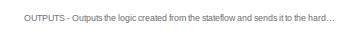
[diagram: root canvas - part 1/7, top right region]
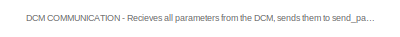
[diagram: root canvas - part 2/7, top left region]
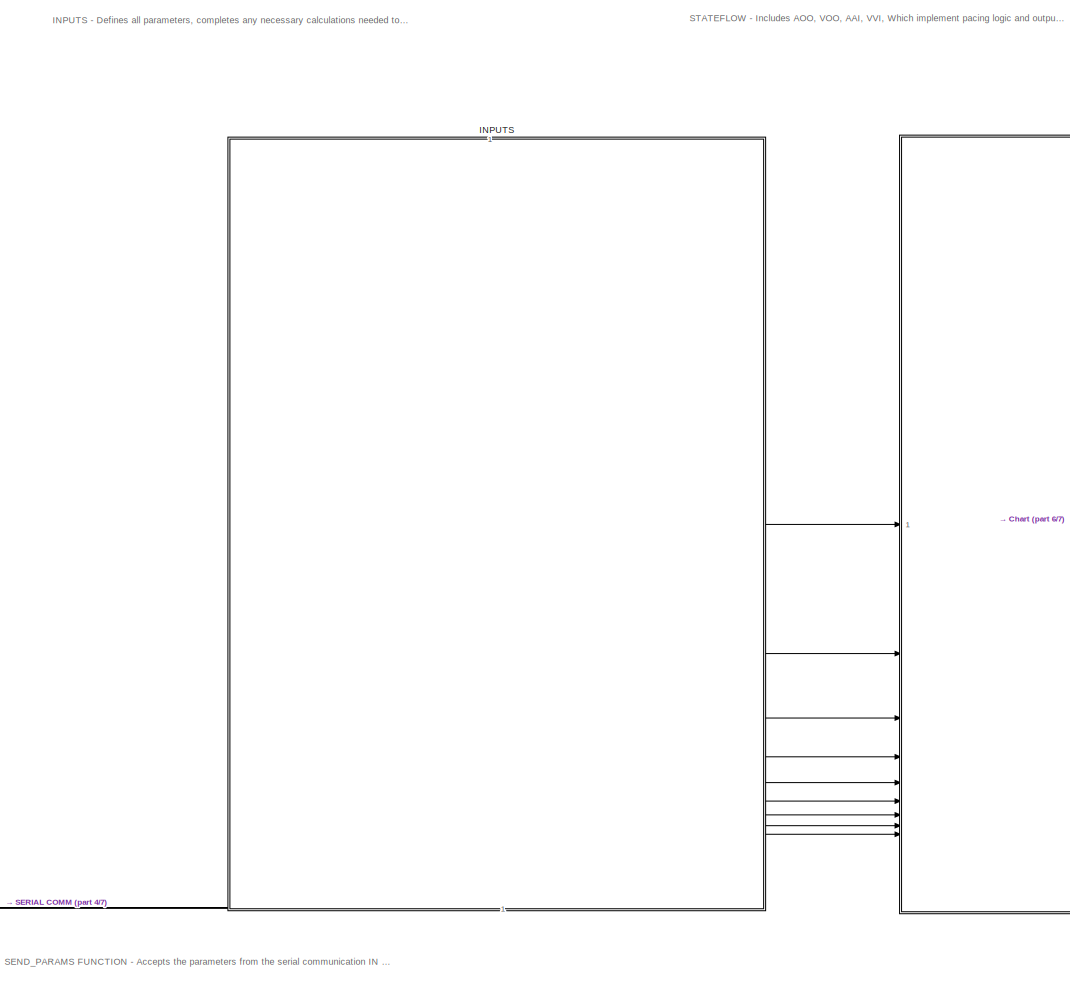
[diagram: root canvas - part 3/7, top center region]
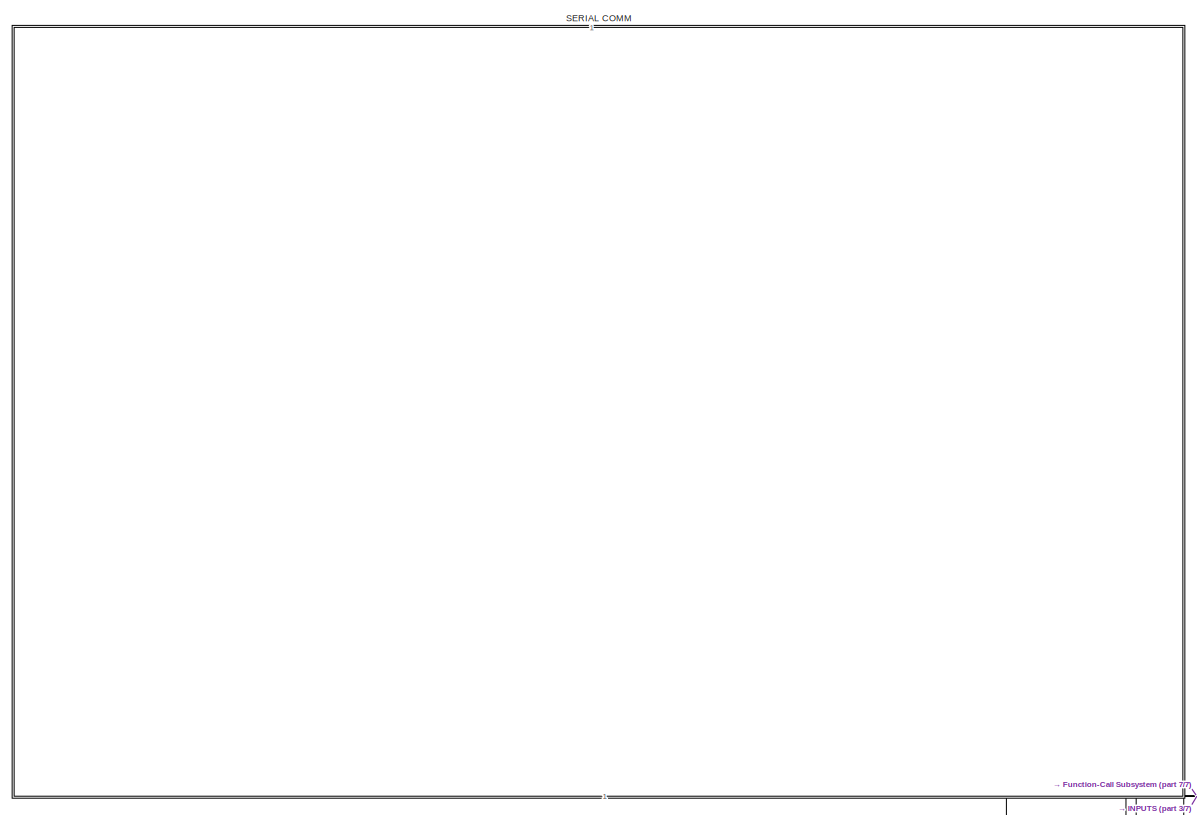
[diagram: root canvas - part 4/7, top left region]
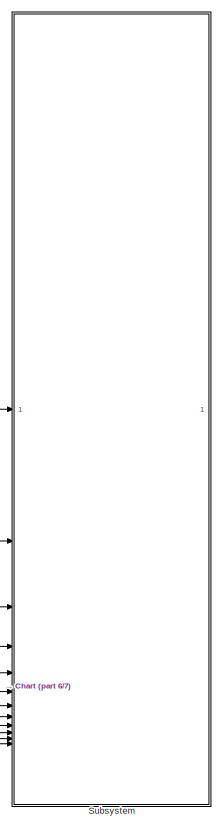
[diagram: root canvas - part 5/7, top right region]
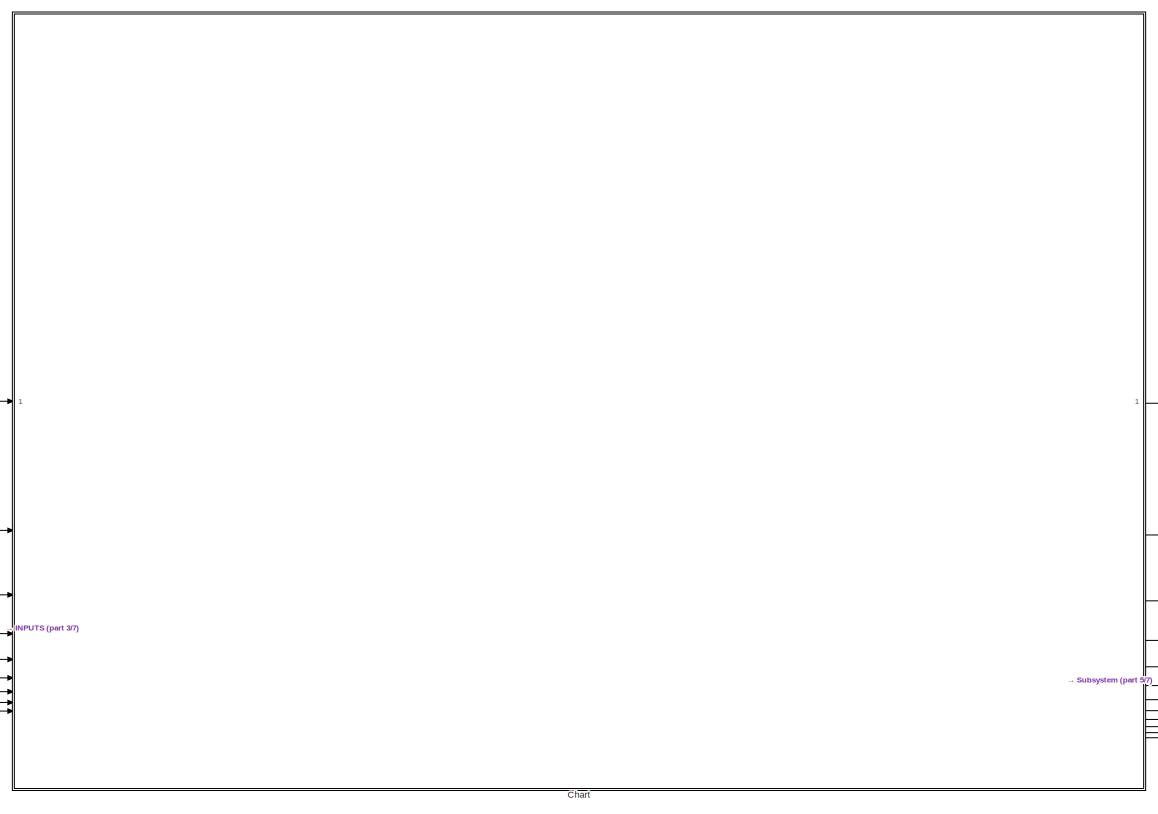
[diagram: root canvas - part 6/7, top right region]
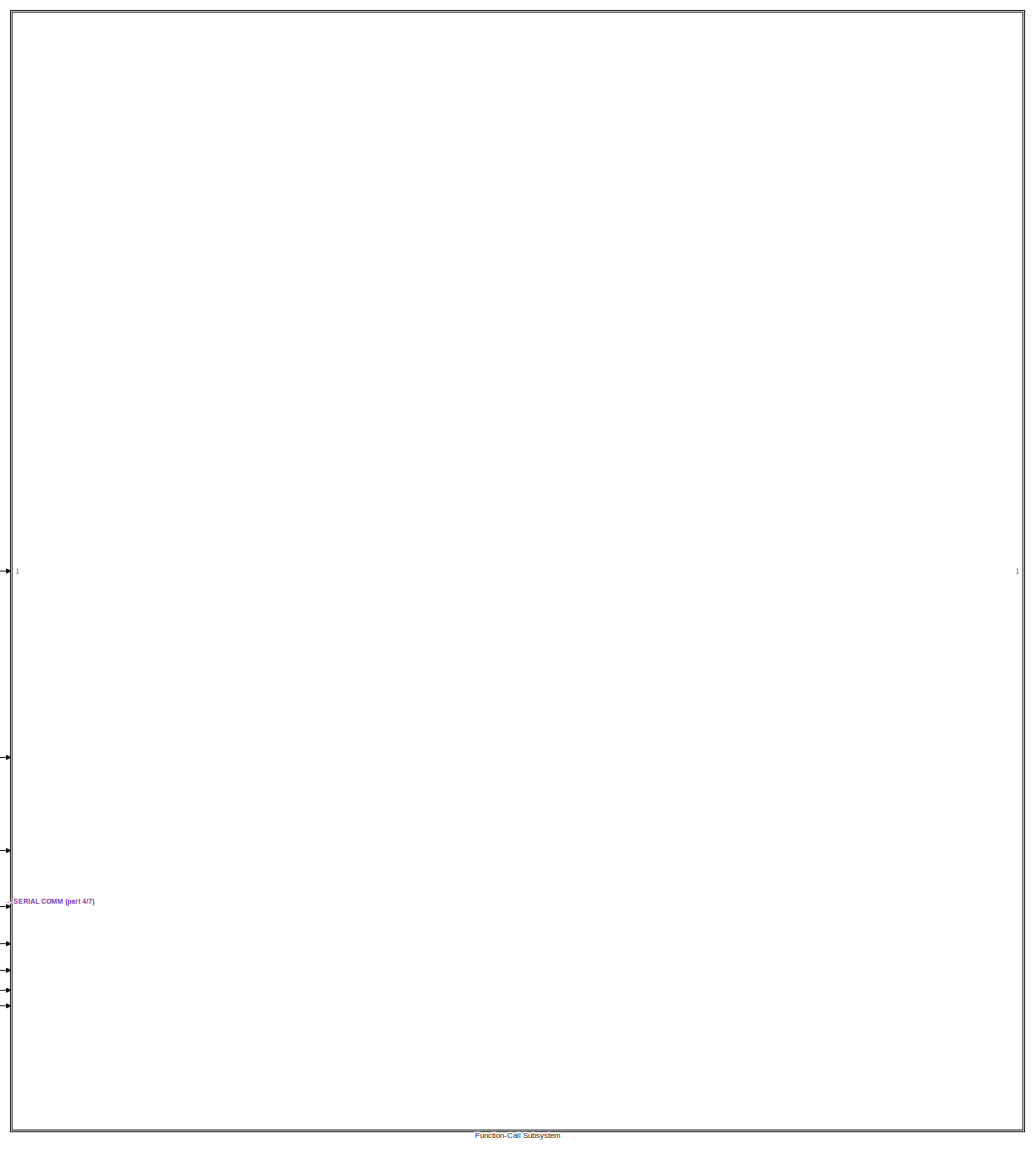
[diagram: root canvas - part 7/7, bottom center region]
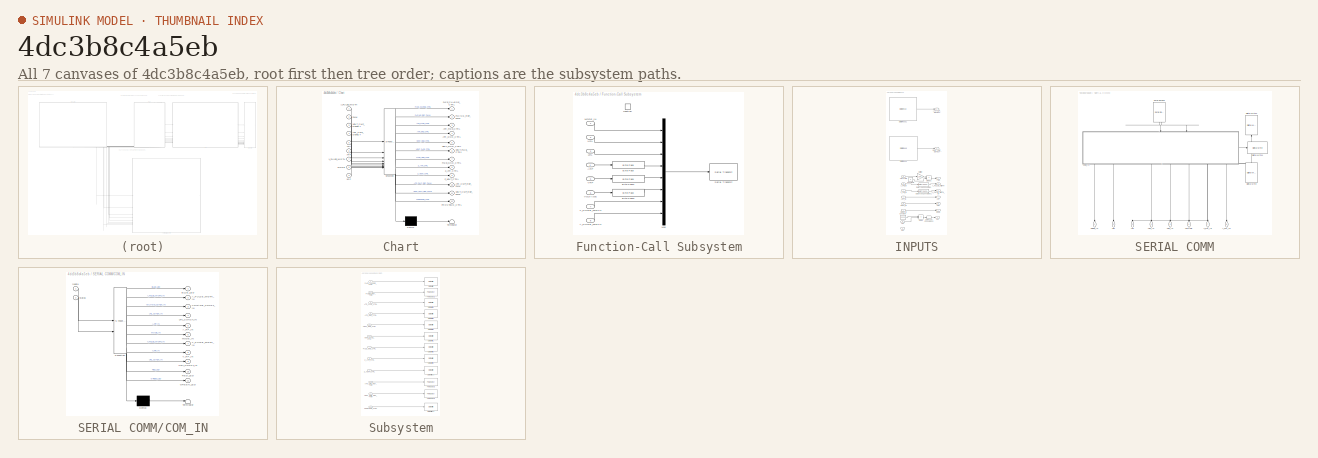
[diagram: thumbnail index - all 7 canvases of the model, root first then tree order]
MODEL slx_4dc3b8c4a5eb
KIND model
CONFIG AbsTol = auto
CONFIG EnableMultiTasking = on
CONFIG FixedStep = 1e-3
CONFIG MaxStep = auto
CONFIG MinStep = auto
CONFIG RelTol = 1e-3
CONFIG SampleTimeConstraint = Unconstrained
CONFIG SolverName = FixedStepAuto
CONFIG StartTime = 0.0
CONFIG StopTime = 10.0
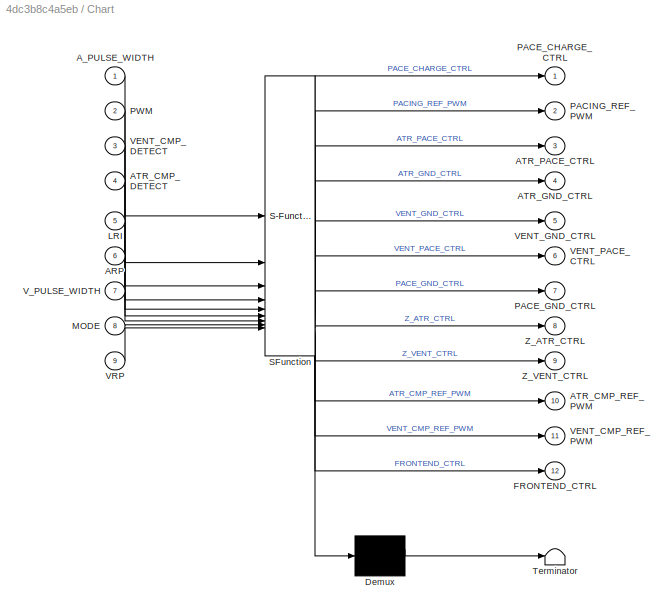
BLOCK [SubSystem] Chart
  ErrorFcn = Stateflow.Translate.translate
  PermitHierarchicalResolution = ExplicitOnly
  PortSchema = {"entries":[{"content":{"sides":[{"content":{"connectorIds":["In5","In2","In1","In7","In3","In4","In6","In9","In8"]},"type":"ConnectorPlacement.EquallySpacedRectSide","uuid":"579a0715-eecf-4ad1-b9c7-876da5a2f487"},{"content":{"connectorIds":["Out1","Out2","Out3","Out4","Out5","Out6","Out7","Out8","Out9","Out10","Out11","Out12"],"side":"RIGHT"},"type":"ConnectorPlacement.EquallySpacedRectSide","uui...<+368ch>
  SFBlockType = Chart
  TreatAsAtomicUnit = on
BLOCK [Demux] Chart/ Demux 
  Outputs = 1
BLOCK [S-Function] Chart/ SFunction 
  EnableBusSupport = on
  FunctionName = sf_sfun
  PortCounts = [9 13]
  SFcnIsStateOwnerBlock = off
  SFunctionDeploymentMode = off
  Tag = Stateflow S-Function 3
BLOCK [Terminator] Chart/ Terminator 
BLOCK [Inport] Chart/ARP
  Port = 6
BLOCK [Inport] Chart/ATR_CMP_DETECT
  Port = 4
BLOCK [Outport] Chart/ATR_CMP_REF_PWM
  Port = 10
BLOCK [Outport] Chart/ATR_GND_CTRL
  Port = 4
BLOCK [Outport] Chart/ATR_PACE_CTRL
  Port = 3
BLOCK [Inport] Chart/A_PULSE_WIDTH
BLOCK [Outport] Chart/FRONTEND_CTRL
  Port = 12
BLOCK [Inport] Chart/LRI
  Port = 5
BLOCK [Inport] Chart/MODE
  Port = 8
BLOCK [Outport] Chart/PACE_CHARGE_CTRL
BLOCK [Outport] Chart/PACE_GND_CTRL
  Port = 7
BLOCK [Outport] Chart/PACING_REF_PWM
  Port = 2
BLOCK [Inport] Chart/PWM
  Port = 2
BLOCK [Inport] Chart/VENT_CMP_DETECT
  Port = 3
BLOCK [Outport] Chart/VENT_CMP_REF_PWM
  Port = 11
BLOCK [Outport] Chart/VENT_GND_CTRL
  Port = 5
BLOCK [Outport] Chart/VENT_PACE_CTRL
  Port = 6
BLOCK [Inport] Chart/VRP
  Port = 9
BLOCK [Inport] Chart/V_PULSE_WIDTH
  Port = 7
BLOCK [Outport] Chart/Z_ATR_CTRL
  Port = 8
BLOCK [Outport] Chart/Z_VENT_CTRL
  Port = 9
BLOCK [SubSystem] Function-Call Subsystem
  TreatAsAtomicUnit = on
BLOCK [Inport] Function-Call Subsystem/ARP
  Port = 4
BLOCK [Inport] Function-Call Subsystem/A_PULSE_WIDTH
  Port = 8
BLOCK [Reference] Function-Call Subsystem/Byte Pack  REF=etargetslib/Byte Pack
  SourceBlock = etargetslib/Byte Pack
  SourceType = Byte pack
BLOCK [Reference] Function-Call Subsystem/Byte Pack1  REF=etargetslib/Byte Pack
  SourceBlock = etargetslib/Byte Pack
  SourceType = Byte pack
BLOCK [Reference] Function-Call Subsystem/Byte Pack2  REF=etargetslib/Byte Pack
  SourceBlock = etargetslib/Byte Pack
  SourceType = Byte pack
BLOCK [Inport] Function-Call Subsystem/LRL
  Port = 3
BLOCK [Inport] Function-Call Subsystem/MODE_IN
BLOCK [Mux] Function-Call Subsystem/Mux
  DisplayOption = bar
  Inputs = 8
BLOCK [Reference] Function-Call Subsystem/Serial Transmit  REF=frdmk64flib/Serial Transmit
  SourceBlock = frdmk64flib/Serial Transmit
  SourceType = freedomk64f.SCIWrite
BLOCK [Inport] Function-Call Subsystem/URL
  Port = 2
BLOCK [Inport] Function-Call Subsystem/VOLTAGE
  OutDataTypeStr = single
  Port = 6
BLOCK [Inport] Function-Call Subsystem/VRP
  Port = 5
BLOCK [Inport] Function-Call Subsystem/V_PULSE_WIDTH
  Port = 7
BLOCK [TriggerPort] Function-Call Subsystem/function
  FunctionName = send_parameters
  IsSimulinkFunction = on
  StatesWhenEnabling = held
  TriggerType = function-call
  VariantControl = (inherit)
BLOCK [SubSystem] INPUTS
  NameLocation = top
  PortSchema = {"entries":[{"content":{"sides":[{"content":{"connectorIds":[]},"type":"ConnectorPlacement.EquallySpacedRectSide","uuid":"bedbe6ad-1dc2-4cce-9585-188ab1dfdae5"},{"content":{"connectorIds":[],"side":"RIGHT"},"type":"ConnectorPlacement.EquallySpacedRectSide","uuid":"0b0c00e6-e38b-4dbd-945a-73b1885ed563"},{"content":{"connectorIds":["In1","In2","In3","In4","In5","In6","In7","In8"],"side":"TOP"},"type...<+482ch>
BLOCK [Outport] INPUTS/ARP
  Port = 7
BLOCK [Inport] INPUTS/ARP_IN
  Port = 4
BLOCK [Outport] INPUTS/ATR_CMP_DETECT
  Port = 6
BLOCK [Outport] INPUTS/A_PULSE_WIDTH
  Port = 3
BLOCK [Inport] INPUTS/A_PW_IN
  Port = 8
BLOCK [Constant] INPUTS/Constant
  Value = 60000
BLOCK [Constant] INPUTS/Constant1
  Value = 5
BLOCK [DataTypeConversion] INPUTS/Data Type Conversion
  OutDataTypeStr = uint16
  RndMeth = Floor
  SaturateOnIntegerOverflow = off
BLOCK [DataTypeConversion] INPUTS/Data Type Conversion1
  OutDataTypeStr = uint16
  RndMeth = Floor
  SaturateOnIntegerOverflow = off
BLOCK [DataTypeConversion] INPUTS/Data Type Conversion2
  OutDataTypeStr = uint16
  RndMeth = Floor
  SaturateOnIntegerOverflow = off
BLOCK [Reference] INPUTS/Digital Read  REF=frdmk64flib/Digital Read
  SourceBlock = frdmk64flib/Digital Read
  SourceType = freedomk64f.DigitalRead
BLOCK [Reference] INPUTS/Digital Read1  REF=frdmk64flib/Digital Read
  SourceBlock = frdmk64flib/Digital Read
  SourceType = freedomk64f.DigitalRead
BLOCK [Product] INPUTS/Divide
  Inputs = */
BLOCK [Product] INPUTS/Divide1
  Inputs = */
BLOCK [Outport] INPUTS/LRI
BLOCK [Inport] INPUTS/LRL
  Port = 3
BLOCK [Outport] INPUTS/MODE
  Port = 9
BLOCK [Inport] INPUTS/MODE_IN
BLOCK [Gain] INPUTS/Multiply
  Gain = 100
BLOCK [Outport] INPUTS/PWM
  Port = 2
BLOCK [Inport] INPUTS/URL
  Port = 2
BLOCK [Outport] INPUTS/VENT_CMP_DETECT
  Port = 5
BLOCK [Inport] INPUTS/VOLTAGE
  Port = 6
BLOCK [Outport] INPUTS/VRP
  Port = 8
BLOCK [Inport] INPUTS/VRsP_IN
  Port = 5
BLOCK [Outport] INPUTS/V_PULSE_WIDTH_IN
  Port = 4
BLOCK [Inport] INPUTS/V_PW_IN
  Port = 7
BLOCK [SubSystem] SERIAL COMM
  NameLocation = top
  PortSchema = {"entries":[{"content":{"sides":[{"content":{"connectorIds":[]},"type":"ConnectorPlacement.EquallySpacedRectSide","uuid":"bedbe6ad-1dc2-4cce-9585-188ab1dfdae5"},{"content":{"connectorIds":[],"side":"RIGHT"},"type":"ConnectorPlacement.EquallySpacedRectSide","uuid":"0b0c00e6-e38b-4dbd-945a-73b1885ed563"},{"content":{"connectorIds":[],"side":"TOP"},"type":"ConnectorPlacement.EquallySpacedRectSide","u...<+428ch>
BLOCK [Outport] SERIAL COMM/ARP_IN
  Port = 4
BLOCK [Outport] SERIAL COMM/A_PW_IN
  Port = 8
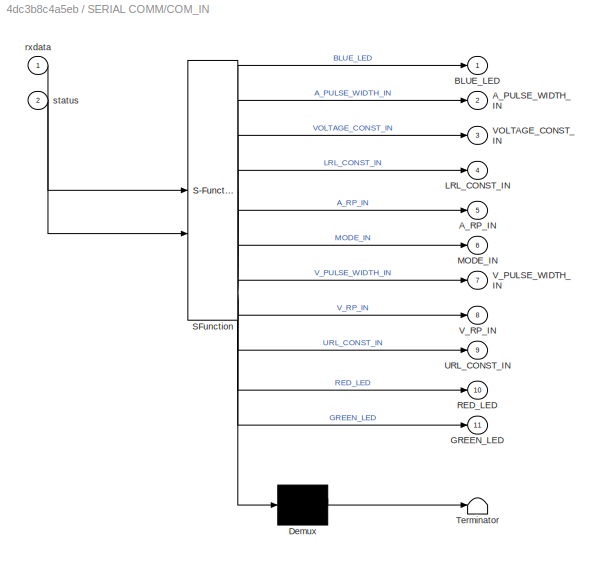
BLOCK [SubSystem] SERIAL COMM/COM_IN
  ErrorFcn = Stateflow.Translate.translate
  NameLocation = left
  PermitHierarchicalResolution = ExplicitOnly
  PortSchema = {"entries":[{"content":{"sides":[{"content":{"connectorIds":["In1","In2"]},"type":"ConnectorPlacement.EquallySpacedRectSide","uuid":"d63df865-b51f-43d6-a13f-6ae075812ede"},{"content":{"connectorIds":["Out6","Out9","Out4","Out5","Out8","Out3","Out7","Out2"],"side":"RIGHT"},"type":"ConnectorPlacement.EquallySpacedRectSide","uuid":"8033d1cf-b8ff-4fd5-8be7-20697f5f926f"},{"content":{"connectorIds":[],...<+461ch>
  SFBlockType = Chart
  TreatAsAtomicUnit = on
BLOCK [Demux] SERIAL COMM/COM_IN/ Demux 
  Outputs = 1
BLOCK [S-Function] SERIAL COMM/COM_IN/ SFunction 
  EnableBusSupport = on
  FunctionName = sf_sfun
  PortCounts = [2 12]
  SFcnIsStateOwnerBlock = off
  SFunctionDeploymentMode = off
  Tag = Stateflow S-Function 1
BLOCK [Terminator] SERIAL COMM/COM_IN/ Terminator 
BLOCK [Outport] SERIAL COMM/COM_IN/A_PULSE_WIDTH_IN
  Port = 2
BLOCK [Outport] SERIAL COMM/COM_IN/A_RP_IN
  Port = 5
BLOCK [Outport] SERIAL COMM/COM_IN/BLUE_LED
BLOCK [Outport] SERIAL COMM/COM_IN/GREEN_LED
  Port = 11
BLOCK [Outport] SERIAL COMM/COM_IN/LRL_CONST_IN
  Port = 4
BLOCK [Outport] SERIAL COMM/COM_IN/MODE_IN
  Port = 6
BLOCK [Outport] SERIAL COMM/COM_IN/RED_LED
  Port = 10
BLOCK [Outport] SERIAL COMM/COM_IN/URL_CONST_IN
  Port = 9
BLOCK [Outport] SERIAL COMM/COM_IN/VOLTAGE_CONST_IN
  Port = 3
BLOCK [Outport] SERIAL COMM/COM_IN/V_PULSE_WIDTH_IN
  Port = 7
BLOCK [Outport] SERIAL COMM/COM_IN/V_RP_IN
  Port = 8
BLOCK [Inport] SERIAL COMM/COM_IN/rxdata
BLOCK [Inport] SERIAL COMM/COM_IN/status
  Port = 2
BLOCK [Reference] SERIAL COMM/Digital Write  REF=frdmk64flib/Digital Write
  NameLocation = left
  SourceBlock = frdmk64flib/Digital Write
  SourceType = freedomk64f.DigitalWrite
BLOCK [Reference] SERIAL COMM/Digital Write1  REF=frdmk64flib/Digital Write
  SourceBlock = frdmk64flib/Digital Write
  SourceType = freedomk64f.DigitalWrite
BLOCK [Reference] SERIAL COMM/Digital Write2  REF=frdmk64flib/Digital Write
  NameLocation = right
  SourceBlock = frdmk64flib/Digital Write
  SourceType = freedomk64f.DigitalWrite
BLOCK [Outport] SERIAL COMM/LRL
  Port = 3
BLOCK [Outport] SERIAL COMM/MODE_IN
BLOCK [Reference] SERIAL COMM/Serial Receive  REF=frdmk64flib/Serial Receive
  NameLocation = left
  SourceBlock = frdmk64flib/Serial Receive
  SourceType = freedomk64f.SCIRead
BLOCK [Outport] SERIAL COMM/URL
  Port = 2
BLOCK [Outport] SERIAL COMM/VOLTAGE
  OutDataTypeStr = single
  Port = 6
BLOCK [Outport] SERIAL COMM/VRP_IN
  Port = 5
BLOCK [Outport] SERIAL COMM/V_PW_IN
  Port = 7
BLOCK [SubSystem] Subsystem
BLOCK [Inport] Subsystem/ATR_CMP_REF_PWM
  Port = 10
BLOCK [Inport] Subsystem/ATR_GND_CTRL
  Port = 4
BLOCK [Inport] Subsystem/ATR_PACE_CTRL
  Port = 3
BLOCK [Reference] Subsystem/Digital Write  REF=frdmk64flib/Digital Write
  SourceBlock = frdmk64flib/Digital Write
  SourceType = freedomk64f.DigitalWrite
BLOCK [Reference] Subsystem/Digital Write1  REF=frdmk64flib/Digital Write
  SourceBlock = frdmk64flib/Digital Write
  SourceType = freedomk64f.DigitalWrite
BLOCK [Reference] Subsystem/Digital Write10  REF=frdmk64flib/Digital Write
  SourceBlock = frdmk64flib/Digital Write
  SourceType = freedomk64f.DigitalWrite
BLOCK [Reference] Subsystem/Digital Write11  REF=frdmk64flib/Digital Write
  SourceBlock = frdmk64flib/Digital Write
  SourceType = freedomk64f.DigitalWrite
BLOCK [Reference] Subsystem/Digital Write4  REF=frdmk64flib/Digital Write
  SourceBlock = frdmk64flib/Digital Write
  SourceType = freedomk64f.DigitalWrite
BLOCK [Reference] Subsystem/Digital Write5  REF=frdmk64flib/Digital Write
  SourceBlock = frdmk64flib/Digital Write
  SourceType = freedomk64f.DigitalWrite
BLOCK [Reference] Subsystem/Digital Write6  REF=frdmk64flib/Digital Write
  SourceBlock = frdmk64flib/Digital Write
  SourceType = freedomk64f.DigitalWrite
BLOCK [Reference] Subsystem/Digital Write8  REF=frdmk64flib/Digital Write
  SourceBlock = frdmk64flib/Digital Write
  SourceType = freedomk64f.DigitalWrite
BLOCK [Reference] Subsystem/Digital Write9  REF=frdmk64flib/Digital Write
  SourceBlock = frdmk64flib/Digital Write
  SourceType = freedomk64f.DigitalWrite
BLOCK [Inport] Subsystem/FRONTEND_CTRL
  Port = 12
BLOCK [Inport] Subsystem/PACE_CHARGE_CTRL
BLOCK [Inport] Subsystem/PACE_GND_CTRL
  Port = 7
BLOCK [Inport] Subsystem/PACING_REF_PWM
  Port = 2
BLOCK [Reference] Subsystem/PWM Output1  REF=frdmk64flib/PWM Output
  SourceBlock = frdmk64flib/PWM Output
  SourceType = freedomk64f.PWMOutput
BLOCK [Reference] Subsystem/PWM Output2  REF=frdmk64flib/PWM Output
  SourceBlock = frdmk64flib/PWM Output
  SourceType = freedomk64f.PWMOutput
BLOCK [Reference] Subsystem/PWM Output3  REF=frdmk64flib/PWM Output
  SourceBlock = frdmk64flib/PWM Output
  SourceType = freedomk64f.PWMOutput
BLOCK [Inport] Subsystem/VENT_CMP_REF_PWM
  Port = 11
BLOCK [Inport] Subsystem/VENT_GND_CTRL
  Port = 5
BLOCK [Inport] Subsystem/VENT_PACE_CTRL
  Port = 6
BLOCK [Inport] Subsystem/Z_ATR_CTRL
  Port = 8
BLOCK [Inport] Subsystem/Z_VENT_CTRL
  Port = 9
ANNOTATION (root): DCM COMMUNICATION - Recieves all parameters from the DCM, sends them to send_params() and to inputs for
ANNOTATION (root): INPUTS - Defines all parameters, completes any necessary calculations needed to output to the stateflow, and includes serial communication IN.
ANNOTATION (root): OUTPUTS - Outputs the logic created from the stateflow and sends it to the hardware.
ANNOTATION (root): SEND_PARAMS FUNCTION - Accepts the parameters from the serial communication IN and sends the data to the DCM (serial communication OUT).
ANNOTATION (root): STATEFLOW - Includes AOO, VOO, AAI, VVI, Which implement pacing logic and output to the hardware.
LINE Chart:1 -> Subsystem:1
LINE Chart:10 -> Subsystem:10
LINE Chart:11 -> Subsystem:11
LINE Chart:12 -> Subsystem:12
LINE Chart:2 -> Subsystem:2
LINE Chart:3 -> Subsystem:3
LINE Chart:4 -> Subsystem:4
LINE Chart:5 -> Subsystem:5
LINE Chart:6 -> Subsystem:6
LINE Chart:7 -> Subsystem:7
LINE Chart:8 -> Subsystem:8
LINE Chart:9 -> Subsystem:9
LINE Function-Call Subsystem/ARP:1 -> Function-Call Subsystem/Byte Pack:1
LINE Function-Call Subsystem/A_PULSE_WIDTH:1 -> Function-Call Subsystem/Mux:8
LINE Function-Call Subsystem/Byte Pack1:1 -> Function-Call Subsystem/Mux:5
LINE Function-Call Subsystem/Byte Pack2:1 -> Function-Call Subsystem/Mux:6
LINE Function-Call Subsystem/Byte Pack:1 -> Function-Call Subsystem/Mux:4
LINE Function-Call Subsystem/LRL:1 -> Function-Call Subsystem/Mux:3
LINE Function-Call Subsystem/MODE_IN:1 -> Function-Call Subsystem/Mux:1
LINE Function-Call Subsystem/Mux:1 -> Function-Call Subsystem/Serial Transmit:1
LINE Function-Call Subsystem/URL:1 -> Function-Call Subsystem/Mux:2
LINE Function-Call Subsystem/VOLTAGE:1 -> Function-Call Subsystem/Byte Pack2:1
LINE Function-Call Subsystem/VRP:1 -> Function-Call Subsystem/Byte Pack1:1
LINE Function-Call Subsystem/V_PULSE_WIDTH:1 -> Function-Call Subsystem/Mux:7
LINE INPUTS/ARP_IN:1 -> INPUTS/ARP:1
LINE INPUTS/A_PW_IN:1 -> INPUTS/Data Type Conversion:1
LINE INPUTS/Constant1:1 -> INPUTS/Divide1:2
LINE INPUTS/Constant:1 -> INPUTS/Divide:1
LINE INPUTS/Data Type Conversion1:1 -> INPUTS/V_PULSE_WIDTH_IN:1
LINE INPUTS/Data Type Conversion2:1 -> INPUTS/LRI:1
LINE INPUTS/Data Type Conversion:1 -> INPUTS/A_PULSE_WIDTH:1
LINE INPUTS/Digital Read1:1 -> INPUTS/ATR_CMP_DETECT:1
LINE INPUTS/Digital Read:1 -> INPUTS/VENT_CMP_DETECT:1
LINE INPUTS/Divide1:1 -> INPUTS/PWM:1
LINE INPUTS/Divide:1 -> INPUTS/Data Type Conversion2:1
LINE INPUTS/LRL:1 -> INPUTS/Divide:2
LINE INPUTS/MODE_IN:1 -> INPUTS/MODE:1
LINE INPUTS/Multiply:1 -> INPUTS/Divide1:1
LINE INPUTS/VOLTAGE:1 -> INPUTS/Multiply:1
LINE INPUTS/VRsP_IN:1 -> INPUTS/VRP:1
LINE INPUTS/V_PW_IN:1 -> INPUTS/Data Type Conversion1:1
LINE INPUTS:1 -> Chart:5
LINE INPUTS:2 -> Chart:2
LINE INPUTS:3 -> Chart:1
LINE INPUTS:4 -> Chart:7
LINE INPUTS:5 -> Chart:3
LINE INPUTS:6 -> Chart:4
LINE INPUTS:7 -> Chart:6
LINE INPUTS:8 -> Chart:9
LINE INPUTS:9 -> Chart:8
LINE SERIAL COMM/COM_IN:1 -> SERIAL COMM/Digital Write2:1
LINE SERIAL COMM/COM_IN:10 -> SERIAL COMM/Digital Write:1
LINE SERIAL COMM/COM_IN:11 -> SERIAL COMM/Digital Write1:1
LINE SERIAL COMM/COM_IN:2 -> SERIAL COMM/A_PW_IN:1
LINE SERIAL COMM/COM_IN:3 -> SERIAL COMM/VOLTAGE:1
LINE SERIAL COMM/COM_IN:4 -> SERIAL COMM/LRL:1
LINE SERIAL COMM/COM_IN:5 -> SERIAL COMM/ARP_IN:1
LINE SERIAL COMM/COM_IN:6 -> SERIAL COMM/MODE_IN:1
LINE SERIAL COMM/COM_IN:7 -> SERIAL COMM/V_PW_IN:1
LINE SERIAL COMM/COM_IN:8 -> SERIAL COMM/VRP_IN:1
LINE SERIAL COMM/COM_IN:9 -> SERIAL COMM/URL:1
LINE SERIAL COMM/Serial Receive:1 -> SERIAL COMM/COM_IN:1
LINE SERIAL COMM/Serial Receive:2 -> SERIAL COMM/COM_IN:2
NET SERIAL COMM:1 -> Function-Call Subsystem:1, INPUTS:1
NET SERIAL COMM:2 -> Function-Call Subsystem:2, INPUTS:2
NET SERIAL COMM:3 -> Function-Call Subsystem:3, INPUTS:3
NET SERIAL COMM:4 -> Function-Call Subsystem:4, INPUTS:4
NET SERIAL COMM:5 -> Function-Call Subsystem:5, INPUTS:5
NET SERIAL COMM:6 -> Function-Call Subsystem:6, INPUTS:6
NET SERIAL COMM:7 -> Function-Call Subsystem:7, INPUTS:7
NET SERIAL COMM:8 -> Function-Call Subsystem:8, INPUTS:8
LINE Subsystem/ATR_CMP_REF_PWM:1 -> Subsystem/PWM Output2:1
LINE Subsystem/ATR_GND_CTRL:1 -> Subsystem/Digital Write5:1
LINE Subsystem/ATR_PACE_CTRL:1 -> Subsystem/Digital Write4:1
LINE Subsystem/FRONTEND_CTRL:1 -> Subsystem/Digital Write11:1
LINE Subsystem/PACE_CHARGE_CTRL:1 -> Subsystem/Digital Write:1
LINE Subsystem/PACE_GND_CTRL:1 -> Subsystem/Digital Write8:1
LINE Subsystem/PACING_REF_PWM:1 -> Subsystem/PWM Output1:1
LINE Subsystem/VENT_CMP_REF_PWM:1 -> Subsystem/PWM Output3:1
LINE Subsystem/VENT_GND_CTRL:1 -> Subsystem/Digital Write6:1
LINE Subsystem/VENT_PACE_CTRL:1 -> Subsystem/Digital Write1:1
LINE Subsystem/Z_ATR_CTRL:1 -> Subsystem/Digital Write9:1
LINE Subsystem/Z_VENT_CTRL:1 -> Subsystem/Digital Write10:1
note: NET lines group one-source signal fan-out (src -> all destinations, sorted); 1:1 wires keep LINE
CHART SERIAL COMM/COM_IN states=4 transitions=9
  STATE_LABEL "SET_PARAM\nentry:\nMODE_IN = rxdata(3); %Pacing modes (1-4)\nURL_CONST_IN = rxdata(4); %Upper rate limit (ppm)\nLRL_CONST_IN = rxdata(5); %Lower rate limit (ppm)\nA_RP_IN = typecast(rxdata(6:7), 'uint16'); %Refractory period (ms)\nV_RP_IN = typecast(rxdata(8:9), 'uint16'); %Refractory period (ms)\nVOLTAGE_CONST_IN =  typecast(rxdata(10:13), 'single'); %Pulse Amplitude (V)\nV_PULSE_WIDTH_IN = rxdata(14); %...<+106ch>"
  STATE_LABEL 'INITIAL\nentry:\nA_PULSE_WIDTH_IN = 1;\nV_PULSE_WIDTH_IN = 2;\nVOLTAGE_CONST_IN = 1;\nLRL_CONST_IN = 1;\nA_RP_IN = 1;\nV_RP_IN = 1;\nMODE_IN = 3;\n'
  STATE_LABEL 'STANDBY\nentry:\nRED_LED=1;\nBLUE_LED = 0;\nGREEN_LED=0;'
  STATE_LABEL 'ECHO_PARAM\nentry:\nRED_LED = 0;\nBLUE_LED = 1;\nsend_parameters();'
CHART Chart states=12 transitions=15
  STATE_LABEL 'ARP\nentry:\nFRONTEND_CTRL=true;'
  STATE_LABEL 'ALERT_A\nentry:\nFRONTEND_CTRL=true;'
  STATE_LABEL '<!DOCTYPE HTML PUBLIC "-//W3C//DTD HTML 4.0//EN" "http://www.w3.org/TR/REC-html40/strict.dtd">\n<html><head><meta name="qrichtext" content="1" /><style type="text/css">\np, li { white-space: pre-wrap; }\n</style></head><body align="left" style=" font-family:\'Helvetica\'; font-size:12px; font-weight:400; font-style:normal;">\n<p align="left" style=" margin-top:0px; margin-bottom:0px; margin-left:0px; ma...<+409ch>'
  STATE_LABEL '<!DOCTYPE HTML PUBLIC "-//W3C//DTD HTML 4.0//EN" "http://www.w3.org/TR/REC-html40/strict.dtd">\n<html><head><meta name="qrichtext" content="1" /><style type="text/css">\np, li { white-space: pre-wrap; }\n</style></head><body align="left" style=" font-family:\'Helvetica\'; font-size:12px; font-weight:400; font-style:normal;">\n<p align="left" style=" margin-top:0px; margin-bottom:0px; margin-left:0px; ma...<+246ch>'
  STATE_LABEL 'DISCHARGE_CHARGE_A\nentry:\nPACE_CHARGE_CTRL=true;\nPACE_GND_CTRL=true;\nVENT_PACE_CTRL=false;\nATR_PACE_CTRL=false;\nVENT_GND_CTRL=false;\nATR_GND_CTRL=true;\n'
  STATE_LABEL 'PACE_A\nentry:\nPACE_CHARGE_CTRL=false;\nVENT_GND_CTRL=false;\nATR_GND_CTRL=false;\nPACE_GND_CTRL=true;\nVENT_PACE_CTRL=false;\nATR_PACE_CTRL=true;\n'
  STATE_LABEL 'INIT\nentry:\nPACING_REF_PWM=PWM;\nPACE_CHARGE_CTRL=false;\nVENT_PACE_CTRL=false;\nATR_PACE_CTRL=false;\nVENT_GND_CTRL=false;\nATR_GND_CTRL=false;\nPACE_GND_CTRL=false;\nZ_ATR_CTRL=false;\nZ_VENT_CTRL=false;\nFRONTEND_CTRL=true;\nVENT_CMP_REF_PWM=90;\nATR_CMP_REF_PWM=90;'
  STATE_LABEL 'DISCHARGE_CHARGE_V\nentry:\nPACE_CHARGE_CTRL=true;\nPACE_GND_CTRL=true;\nVENT_PACE_CTRL=false;\nATR_PACE_CTRL=false;\nVENT_GND_CTRL=true;\nATR_GND_CTRL=false;\n'
  STATE_LABEL 'PACE_V\nentry:\nPACE_CHARGE_CTRL=false;\nVENT_GND_CTRL=false;\nATR_GND_CTRL=false;\nPACE_GND_CTRL=true;\nVENT_PACE_CTRL=true;\nATR_PACE_CTRL=false;\n'
  STATE_LABEL '<!DOCTYPE HTML PUBLIC "-//W3C//DTD HTML 4.0//EN" "http://www.w3.org/TR/REC-html40/strict.dtd">\n<html><head><meta name="qrichtext" content="1" /><style type="text/css">\np, li { white-space: pre-wrap; }\n</style></head><body align="left" style=" font-family:\'Helvetica\'; font-size:12px; font-weight:400; font-style:normal;">\n<p align="left" style=" margin-top:0px; margin-bottom:0px; margin-left:0px; ma...<+412ch>'
  STATE_LABEL 'VRP\nentry:\nFRONTEND_CTRL=true;'
  STATE_LABEL 'ALERT_V\nentry:\nFRONTEND_CTRL=true;'
CHART  states=0 transitions=0
CHART  states=0 transitions=0
